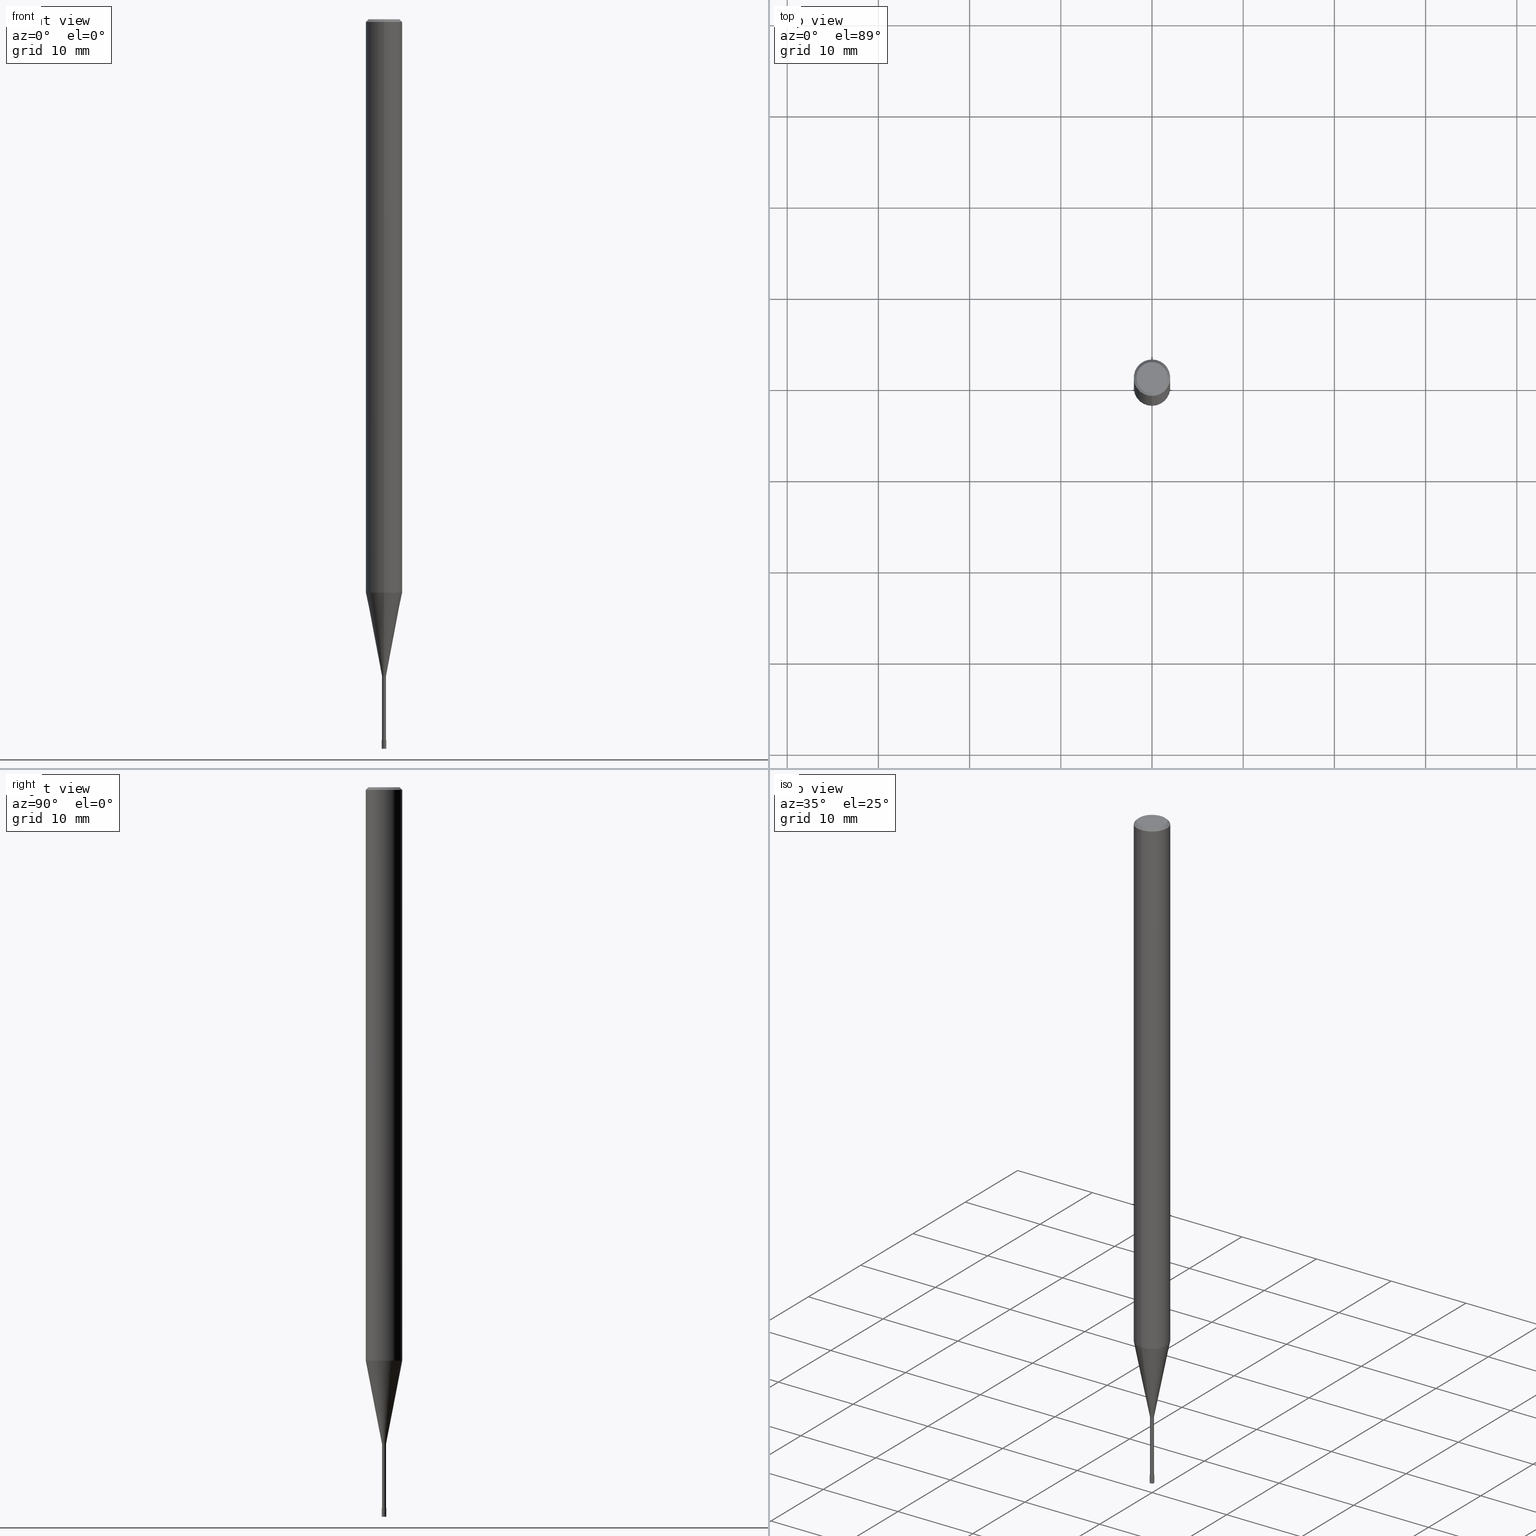
[diagram: canonical four-view strip — front | top / right | iso, engineering-drawing reading convention]
A machine part, canonical four-view strip (front | top / right | iso — engineering-drawing reading convention). The complete STEP part file that produces these views, byte-faithful:
ISO-10303-21;
HEADER;
FILE_DESCRIPTION(('no description'),'unknown implementation level');
FILE_NAME('CPRL2005-8-Huellk.stp','  ',('CIMSOURCE GmbH'),('CADClick - KiM GmbH - www.kimweb.de'),'unknown preprocess','ACIS','unknown authorization');
FILE_SCHEMA(('automotive_design'));
ENDSEC;
DATA;
#1=MECHANICAL_DESIGN_GEOMETRIC_PRESENTATION_REPRESENTATION(' ',(#14,#15,#16,#17,#18,#19,#20,#21,#22,#23,#24,#25,#26,#27,#28,#29,#30,#31,#32,#33,#34,#35,#36,#37,#38,#39,#40,#41,#42,#43,#44,#45,#46,#47,#48,#49,#50,#51,#52,#53,#54,#55,#56,#57,#58,#59,#60,#61,#62,#63,#64,#65,#66,#67,#68,#69,#70,#71,#72),#10);
#2=PRODUCT_DEFINITION_CONTEXT('',#73,'design');
#3=APPLICATION_PROTOCOL_DEFINITION('INTERNATIONAL STANDARD','automotive_design',1994,#73);
#4=PRODUCT_CATEGORY_RELATIONSHIP('NONE','NONE',#74,#75);
#5=SHAPE_DEFINITION_REPRESENTATION(#76,#77);
#6=PRODUCT_DEFINITION_CONTEXT('',#78,'design');
#7=APPLICATION_PROTOCOL_DEFINITION('INTERNATIONAL STANDARD','automotive_design',1994,#78);
#8=PRODUCT_CATEGORY_RELATIONSHIP('NONE','NONE',#79,#80);
#9=SHAPE_DEFINITION_REPRESENTATION(#81,#82);
#10= (GEOMETRIC_REPRESENTATION_CONTEXT(3)GLOBAL_UNCERTAINTY_ASSIGNED_CONTEXT((#85))GLOBAL_UNIT_ASSIGNED_CONTEXT((#87,#88,#89))REPRESENTATION_CONTEXT('NONE','WORKSPACE'));
#14=STYLED_ITEM('',(#91),#92);
#15=STYLED_ITEM('',(#93),#94);
#16=STYLED_ITEM('',(#95),#96);
#17=STYLED_ITEM('',(#97),#98);
#18=STYLED_ITEM('',(#99),#100);
#19=STYLED_ITEM('',(#101),#102);
#20=STYLED_ITEM('',(#103),#104);
#21=STYLED_ITEM('',(#105),#106);
#22=STYLED_ITEM('',(#107),#108);
#23=STYLED_ITEM('',(#109),#110);
#24=STYLED_ITEM('',(#111),#112);
#25=STYLED_ITEM('',(#113),#114);
#26=STYLED_ITEM('',(#115),#116);
#27=STYLED_ITEM('',(#117),#118);
#28=STYLED_ITEM('',(#119),#120);
#29=STYLED_ITEM('',(#121),#122);
#30=STYLED_ITEM('',(#123),#124);
#31=STYLED_ITEM('',(#125),#126);
#32=STYLED_ITEM('',(#127),#128);
#33=STYLED_ITEM('',(#129),#130);
#34=STYLED_ITEM('',(#131),#132);
#35=STYLED_ITEM('',(#133),#134);
#36=STYLED_ITEM('',(#135),#136);
#37=STYLED_ITEM('',(#137),#138);
#38=STYLED_ITEM('',(#139),#140);
#39=STYLED_ITEM('',(#141),#142);
#40=STYLED_ITEM('',(#143),#144);
#41=STYLED_ITEM('',(#145),#146);
#42=STYLED_ITEM('',(#147),#148);
#43=STYLED_ITEM('',(#149),#150);
#44=STYLED_ITEM('',(#151),#152);
#45=STYLED_ITEM('',(#153),#154);
#46=STYLED_ITEM('',(#155),#156);
#47=STYLED_ITEM('',(#157),#158);
#48=STYLED_ITEM('',(#159),#160);
#49=STYLED_ITEM('',(#161),#162);
#50=STYLED_ITEM('',(#163),#164);
#51=STYLED_ITEM('',(#165),#166);
#52=STYLED_ITEM('',(#167),#168);
#53=STYLED_ITEM('',(#169),#170);
#54=STYLED_ITEM('',(#171),#172);
#55=STYLED_ITEM('',(#173),#174);
#56=STYLED_ITEM('',(#175),#176);
#57=STYLED_ITEM('',(#177),#178);
#58=STYLED_ITEM('',(#179),#180);
#59=STYLED_ITEM('',(#181),#182);
#60=STYLED_ITEM('',(#183),#184);
#61=STYLED_ITEM('',(#185),#186);
#62=STYLED_ITEM('',(#187),#188);
#63=STYLED_ITEM('',(#189),#190);
#64=STYLED_ITEM('',(#191),#192);
#65=STYLED_ITEM('',(#193),#194);
#66=STYLED_ITEM('',(#195),#196);
#67=STYLED_ITEM('',(#197),#198);
#68=STYLED_ITEM('',(#199),#200);
#69=STYLED_ITEM('',(#201),#202);
#70=STYLED_ITEM('',(#203),#204);
#71=STYLED_ITEM('',(#205),#206);
#72=STYLED_ITEM('',(#207),#208);
#73=APPLICATION_CONTEXT(' ');
#74=PRODUCT_CATEGORY('part','NONE');
#75=PRODUCT_RELATED_PRODUCT_CATEGORY('detail',' ',(#209));
#76=PRODUCT_DEFINITION_SHAPE('NONE','NONE',#210);
#77=ADVANCED_BREP_SHAPE_REPRESENTATION('1',(#98,#211),#10);
#78=APPLICATION_CONTEXT(' ');
#79=PRODUCT_CATEGORY('part','NONE');
#80=PRODUCT_RELATED_PRODUCT_CATEGORY('detail',' ',(#212));
#81=PRODUCT_DEFINITION_SHAPE('NONE','NONE',#213);
#82=ADVANCED_BREP_SHAPE_REPRESENTATION('2',(#138,#214),#10);
#85=UNCERTAINTY_MEASURE_WITH_UNIT(LENGTH_MEASURE(1.0E-006),#87,'','');
#87= (CONVERSION_BASED_UNIT('MILLIMETRE',#217)LENGTH_UNIT()NAMED_UNIT(#220));
#88= (NAMED_UNIT(#222)PLANE_ANGLE_UNIT()SI_UNIT($,.RADIAN.));
#89= (NAMED_UNIT(#222)SOLID_ANGLE_UNIT()SI_UNIT($,.STERADIAN.));
#91=PRESENTATION_STYLE_ASSIGNMENT((#228));
#92=EDGE_CURVE('',#178,#116,#229,.T.);
#93=PRESENTATION_STYLE_ASSIGNMENT((#230));
#94=EDGE_CURVE('',#202,#194,#231,.T.);
#95=PRESENTATION_STYLE_ASSIGNMENT((#232));
#96=VERTEX_POINT('',#233);
#97=PRESENTATION_STYLE_ASSIGNMENT((#234));
#98=MANIFOLD_SOLID_BREP('1',#235);
#99=PRESENTATION_STYLE_ASSIGNMENT((#236));
#100=ADVANCED_FACE('',(#237),#238,.T.);
#101=PRESENTATION_STYLE_ASSIGNMENT((#239));
#102=ADVANCED_FACE('',(#240),#241,.T.);
#103=PRESENTATION_STYLE_ASSIGNMENT((#242));
#104=EDGE_CURVE('',#198,#142,#243,.T.);
#105=PRESENTATION_STYLE_ASSIGNMENT((#244));
#106=EDGE_CURVE('',#164,#96,#245,.T.);
#107=PRESENTATION_STYLE_ASSIGNMENT((#246));
#108=EDGE_CURVE('',#136,#176,#247,.T.);
#109=PRESENTATION_STYLE_ASSIGNMENT((#248));
#110=VERTEX_POINT('',#249);
#111=PRESENTATION_STYLE_ASSIGNMENT((#250));
#112=EDGE_CURVE('',#96,#164,#251,.T.);
#113=PRESENTATION_STYLE_ASSIGNMENT((#252));
#114=EDGE_CURVE('',#110,#136,#253,.T.);
#115=PRESENTATION_STYLE_ASSIGNMENT((#254));
#116=VERTEX_POINT('',#255);
#117=PRESENTATION_STYLE_ASSIGNMENT((#256));
#118=EDGE_CURVE('',#148,#202,#257,.T.);
#119=PRESENTATION_STYLE_ASSIGNMENT((#258));
#120=ADVANCED_FACE('',(#259),#260,.T.);
#121=PRESENTATION_STYLE_ASSIGNMENT((#261));
#122=EDGE_CURVE('',#172,#148,#262,.T.);
#123=PRESENTATION_STYLE_ASSIGNMENT((#263));
#124=EDGE_CURVE('',#186,#202,#264,.T.);
#125=PRESENTATION_STYLE_ASSIGNMENT((#265));
#126=EDGE_CURVE('',#96,#198,#266,.T.);
#127=PRESENTATION_STYLE_ASSIGNMENT((#267));
#128=EDGE_CURVE('',#186,#182,#268,.T.);
#129=PRESENTATION_STYLE_ASSIGNMENT((#269));
#130=EDGE_CURVE('',#142,#164,#270,.T.);
#131=PRESENTATION_STYLE_ASSIGNMENT((#271));
#132=ADVANCED_FACE('',(#272),#273,.T.);
#133=PRESENTATION_STYLE_ASSIGNMENT((#274));
#134=EDGE_CURVE('',#116,#176,#275,.T.);
#135=PRESENTATION_STYLE_ASSIGNMENT((#276));
#136=VERTEX_POINT('',#277);
#137=PRESENTATION_STYLE_ASSIGNMENT((#278));
#138=MANIFOLD_SOLID_BREP('2',#279);
#139=PRESENTATION_STYLE_ASSIGNMENT((#280));
#140=EDGE_CURVE('',#142,#198,#281,.T.);
#141=PRESENTATION_STYLE_ASSIGNMENT((#282));
#142=VERTEX_POINT('',#283);
#143=PRESENTATION_STYLE_ASSIGNMENT((#284));
#144=EDGE_CURVE('',#162,#110,#285,.T.);
#145=PRESENTATION_STYLE_ASSIGNMENT((#286));
#146=EDGE_CURVE('',#176,#136,#287,.T.);
#147=PRESENTATION_STYLE_ASSIGNMENT((#288));
#148=VERTEX_POINT('',#289);
#149=PRESENTATION_STYLE_ASSIGNMENT((#290));
#150=ADVANCED_FACE('',(#291),#292,.T.);
#151=PRESENTATION_STYLE_ASSIGNMENT((#293));
#152=ADVANCED_FACE('',(#294),#295,.T.);
#153=PRESENTATION_STYLE_ASSIGNMENT((#296));
#154=EDGE_CURVE('',#194,#172,#297,.T.);
#155=PRESENTATION_STYLE_ASSIGNMENT((#298));
#156=ADVANCED_FACE('',(#299),#300,.T.);
#157=PRESENTATION_STYLE_ASSIGNMENT((#301));
#158=EDGE_CURVE('',#176,#162,#302,.T.);
#159=PRESENTATION_STYLE_ASSIGNMENT((#303));
#160=EDGE_CURVE('',#136,#178,#304,.T.);
#161=PRESENTATION_STYLE_ASSIGNMENT((#305));
#162=VERTEX_POINT('',#306);
#163=PRESENTATION_STYLE_ASSIGNMENT((#307));
#164=VERTEX_POINT('',#308);
#165=PRESENTATION_STYLE_ASSIGNMENT((#309));
#166=ADVANCED_FACE('',(#310,#311),#312,.T.);
#167=PRESENTATION_STYLE_ASSIGNMENT((#313));
#168=EDGE_CURVE('',#110,#162,#314,.T.);
#169=PRESENTATION_STYLE_ASSIGNMENT((#315));
#170=EDGE_CURVE('',#148,#182,#316,.T.);
#171=PRESENTATION_STYLE_ASSIGNMENT((#317));
#172=VERTEX_POINT('',#318);
#173=PRESENTATION_STYLE_ASSIGNMENT((#319));
#174=ADVANCED_FACE('',(#320),#321,.T.);
#175=PRESENTATION_STYLE_ASSIGNMENT((#322));
#176=VERTEX_POINT('',#323);
#177=PRESENTATION_STYLE_ASSIGNMENT((#324));
#178=VERTEX_POINT('',#325);
#179=PRESENTATION_STYLE_ASSIGNMENT((#326));
#180=ADVANCED_FACE('',(#327),#328,.T.);
#181=PRESENTATION_STYLE_ASSIGNMENT((#329));
#182=VERTEX_POINT('',#330);
#183=PRESENTATION_STYLE_ASSIGNMENT((#331));
#184=ADVANCED_FACE('',(#332),#333,.T.);
#185=PRESENTATION_STYLE_ASSIGNMENT((#334));
#186=VERTEX_POINT('',#335);
#187=PRESENTATION_STYLE_ASSIGNMENT((#336));
#188=ADVANCED_FACE('',(#337),#338,.T.);
#189=PRESENTATION_STYLE_ASSIGNMENT((#339));
#190=ADVANCED_FACE('',(#340),#341,.T.);
#191=PRESENTATION_STYLE_ASSIGNMENT((#342));
#192=ADVANCED_FACE('',(#343),#344,.T.);
#193=PRESENTATION_STYLE_ASSIGNMENT((#345));
#194=VERTEX_POINT('',#346);
#195=PRESENTATION_STYLE_ASSIGNMENT((#347));
#196=EDGE_CURVE('',#116,#178,#348,.T.);
#197=PRESENTATION_STYLE_ASSIGNMENT((#349));
#198=VERTEX_POINT('',#350);
#199=PRESENTATION_STYLE_ASSIGNMENT((#351));
#200=ADVANCED_FACE('',(#352),#353,.T.);
#201=PRESENTATION_STYLE_ASSIGNMENT((#354));
#202=VERTEX_POINT('',#355);
#203=PRESENTATION_STYLE_ASSIGNMENT((#356));
#204=EDGE_CURVE('',#172,#194,#357,.T.);
#205=PRESENTATION_STYLE_ASSIGNMENT((#358));
#206=EDGE_CURVE('',#182,#186,#359,.T.);
#207=PRESENTATION_STYLE_ASSIGNMENT((#360));
#208=EDGE_CURVE('',#202,#148,#361,.T.);
#209=PRODUCT('1','1','PART-1-DESC',(#362));
#210=PRODUCT_DEFINITION('NONE','NONE',#363,#2);
#211=AXIS2_PLACEMENT_3D('',#364,#365,#366);
#212=PRODUCT('2','2','PART-2-DESC',(#367));
#213=PRODUCT_DEFINITION('NONE','NONE',#368,#6);
#214=AXIS2_PLACEMENT_3D('',#369,#370,#371);
#217=LENGTH_MEASURE_WITH_UNIT(LENGTH_MEASURE(1.0),#372);
#220=DIMENSIONAL_EXPONENTS(1.0,0.0,0.0,0.0,0.0,0.0,0.0);
#222=DIMENSIONAL_EXPONENTS(0.0,0.0,0.0,0.0,0.0,0.0,0.0);
#228=CURVE_STYLE('',#373,POSITIVE_LENGTH_MEASURE(1.0E-006),#374);
#229=CIRCLE('',#375,0.22495);
#230=CURVE_STYLE('',#376,POSITIVE_LENGTH_MEASURE(1.0E-006),#377);
#231=LINE('',#378,#379);
#232=POINT_STYLE(' ',#380,POSITIVE_LENGTH_MEASURE(1.0E-006),#381);
#233=CARTESIAN_POINT('',(3.06151588455594E-017,-0.25,-80.0));
#234=SURFACE_STYLE_USAGE(.BOTH.,#382);
#235=CLOSED_SHELL('',(#192,#100,#132,#184,#166,#120,#200,#150,#152,#102,#190));
#236=SURFACE_STYLE_USAGE(.BOTH.,#383);
#237=FACE_OUTER_BOUND('',#384,.T.);
#238=CONICAL_SURFACE('',#385,1.11245,0.191977672522415);
#239=SURFACE_STYLE_USAGE(.BOTH.,#386);
#240=FACE_OUTER_BOUND('',#387,.T.);
#241=CYLINDRICAL_SURFACE('',#388,0.22495);
#242=CURVE_STYLE('',#389,POSITIVE_LENGTH_MEASURE(1.0E-006),#390);
#243=CIRCLE('',#391,0.2499);
#244=CURVE_STYLE('',#392,POSITIVE_LENGTH_MEASURE(1.0E-006),#393);
#245=CIRCLE('',#394,0.25);
#246=CURVE_STYLE('',#395,POSITIVE_LENGTH_MEASURE(1.0E-006),#396);
#247=CIRCLE('',#397,0.22495);
#248=POINT_STYLE(' ',#398,POSITIVE_LENGTH_MEASURE(1.0E-006),#399);
#249=CARTESIAN_POINT('',(0.0,1.99995,-62.868));
#250=CURVE_STYLE('',#400,POSITIVE_LENGTH_MEASURE(1.0E-006),#401);
#251=CIRCLE('',#402,0.25);
#252=CURVE_STYLE('',#403,POSITIVE_LENGTH_MEASURE(1.0E-006),#404);
#253=LINE('',#405,#406);
#254=POINT_STYLE(' ',#407,POSITIVE_LENGTH_MEASURE(1.0E-006),#408);
#255=CARTESIAN_POINT('',(2.75475199292344E-017,-0.22495,-79.0));
#256=CURVE_STYLE('',#409,POSITIVE_LENGTH_MEASURE(1.0E-006),#410);
#257=CIRCLE('',#411,2.0);
#258=SURFACE_STYLE_USAGE(.BOTH.,#412);
#259=FACE_OUTER_BOUND('',#413,.T.);
#260=PLANE('',#414);
#261=CURVE_STYLE('',#415,POSITIVE_LENGTH_MEASURE(1.0E-006),#416);
#262=LINE('',#417,#418);
#263=CURVE_STYLE('',#419,POSITIVE_LENGTH_MEASURE(1.0E-006),#420);
#264=LINE('',#421,#422);
#265=CURVE_STYLE('',#423,POSITIVE_LENGTH_MEASURE(1.0E-006),#424);
#266=LINE('',#425,#426);
#267=CURVE_STYLE('',#427,POSITIVE_LENGTH_MEASURE(1.0E-006),#428);
#268=CIRCLE('',#429,2.0);
#269=CURVE_STYLE('',#430,POSITIVE_LENGTH_MEASURE(1.0E-006),#431);
#270=LINE('',#432,#433);
#271=SURFACE_STYLE_USAGE(.BOTH.,#434);
#272=FACE_OUTER_BOUND('',#435,.T.);
#273=CYLINDRICAL_SURFACE('',#436,2.0);
#274=CURVE_STYLE('',#437,POSITIVE_LENGTH_MEASURE(1.0E-006),#438);
#275=LINE('',#439,#440);
#276=POINT_STYLE(' ',#441,POSITIVE_LENGTH_MEASURE(1.0E-006),#442);
#277=CARTESIAN_POINT('',(0.0,0.22495,-72.0));
#278=SURFACE_STYLE_USAGE(.BOTH.,#443);
#279=CLOSED_SHELL('',(#174,#156,#180,#188));
#280=CURVE_STYLE('',#444,POSITIVE_LENGTH_MEASURE(1.0E-006),#445);
#281=CIRCLE('',#446,0.2499);
#282=POINT_STYLE(' ',#447,POSITIVE_LENGTH_MEASURE(1.0E-006),#448);
#283=CARTESIAN_POINT('',(0.0,0.2499,-79.0));
#284=CURVE_STYLE('',#449,POSITIVE_LENGTH_MEASURE(1.0E-006),#450);
#285=CIRCLE('',#451,1.99995);
#286=CURVE_STYLE('',#452,POSITIVE_LENGTH_MEASURE(1.0E-006),#453);
#287=CIRCLE('',#454,0.22495);
#288=POINT_STYLE(' ',#455,POSITIVE_LENGTH_MEASURE(1.0E-006),#456);
#289=CARTESIAN_POINT('',(0.0,2.0,-0.299999999999997));
#290=SURFACE_STYLE_USAGE(.BOTH.,#457);
#291=FACE_OUTER_BOUND('',#458,.T.);
#292=CYLINDRICAL_SURFACE('',#459,2.0);
#293=SURFACE_STYLE_USAGE(.BOTH.,#460);
#294=FACE_OUTER_BOUND('',#461,.T.);
#295=CONICAL_SURFACE('',#462,1.11245,0.191977672522415);
#296=CURVE_STYLE('',#463,POSITIVE_LENGTH_MEASURE(1.0E-006),#464);
#297=CIRCLE('',#465,1.7);
#298=SURFACE_STYLE_USAGE(.BOTH.,#466);
#299=FACE_OUTER_BOUND('',#467,.T.);
#300=PLANE('',#468);
#301=CURVE_STYLE('',#469,POSITIVE_LENGTH_MEASURE(1.0E-006),#470);
#302=LINE('',#471,#472);
#303=CURVE_STYLE('',#473,POSITIVE_LENGTH_MEASURE(1.0E-006),#474);
#304=LINE('',#475,#476);
#305=POINT_STYLE(' ',#477,POSITIVE_LENGTH_MEASURE(1.0E-006),#478);
#306=CARTESIAN_POINT('',(2.44915147732706E-016,-1.99995,-62.868));
#307=POINT_STYLE(' ',#479,POSITIVE_LENGTH_MEASURE(1.0E-006),#480);
#308=CARTESIAN_POINT('',(0.0,0.25,-80.0));
#309=SURFACE_STYLE_USAGE(.BOTH.,#481);
#310=FACE_OUTER_BOUND('',#482,.T.);
#311=FACE_BOUND('',#483,.T.);
#312=PLANE('',#484);
#313=CURVE_STYLE('',#485,POSITIVE_LENGTH_MEASURE(1.0E-006),#486);
#314=CIRCLE('',#487,1.99995);
#315=CURVE_STYLE('',#488,POSITIVE_LENGTH_MEASURE(1.0E-006),#489);
#316=LINE('',#490,#491);
#317=POINT_STYLE(' ',#492,POSITIVE_LENGTH_MEASURE(1.0E-006),#493);
#318=CARTESIAN_POINT('',(0.0,1.7,0.0));
#319=SURFACE_STYLE_USAGE(.BOTH.,#494);
#320=FACE_OUTER_BOUND('',#495,.T.);
#321=CONICAL_SURFACE('',#496,0.24995,9.99999996666557E-005);
#322=POINT_STYLE(' ',#497,POSITIVE_LENGTH_MEASURE(1.0E-006),#498);
#323=CARTESIAN_POINT('',(2.75475199292344E-017,-0.22495,-72.0));
#324=POINT_STYLE(' ',#499,POSITIVE_LENGTH_MEASURE(1.0E-006),#500);
#325=CARTESIAN_POINT('',(0.0,0.22495,-79.0));
#326=SURFACE_STYLE_USAGE(.BOTH.,#501);
#327=FACE_OUTER_BOUND('',#502,.T.);
#328=CONICAL_SURFACE('',#503,0.24995,9.99999996666557E-005);
#329=POINT_STYLE(' ',#504,POSITIVE_LENGTH_MEASURE(1.0E-006),#505);
#330=CARTESIAN_POINT('',(0.0,2.0,-62.868));
#331=SURFACE_STYLE_USAGE(.BOTH.,#506);
#332=FACE_OUTER_BOUND('',#507,.T.);
#333=CONICAL_SURFACE('',#508,1.85,0.785398163397453);
#334=POINT_STYLE(' ',#509,POSITIVE_LENGTH_MEASURE(1.0E-006),#510);
#335=CARTESIAN_POINT('',(2.44921270764475E-016,-2.0,-62.868));
#336=SURFACE_STYLE_USAGE(.BOTH.,#511);
#337=FACE_OUTER_BOUND('',#512,.T.);
#338=PLANE('',#513);
#339=SURFACE_STYLE_USAGE(.BOTH.,#514);
#340=FACE_OUTER_BOUND('',#515,.T.);
#341=PLANE('',#516);
#342=SURFACE_STYLE_USAGE(.BOTH.,#517);
#343=FACE_OUTER_BOUND('',#518,.T.);
#344=CYLINDRICAL_SURFACE('',#519,0.22495);
#345=POINT_STYLE(' ',#520,POSITIVE_LENGTH_MEASURE(1.0E-006),#521);
#346=CARTESIAN_POINT('',(2.08183080149804E-016,-1.7,0.0));
#347=CURVE_STYLE('',#522,POSITIVE_LENGTH_MEASURE(1.0E-006),#523);
#348=CIRCLE('',#524,0.22495);
#349=POINT_STYLE(' ',#525,POSITIVE_LENGTH_MEASURE(1.0E-006),#526);
#350=CARTESIAN_POINT('',(3.06029127820212E-017,-0.2499,-79.0));
#351=SURFACE_STYLE_USAGE(.BOTH.,#527);
#352=FACE_OUTER_BOUND('',#528,.T.);
#353=CONICAL_SURFACE('',#529,1.85,0.785398163397453);
#354=POINT_STYLE(' ',#530,POSITIVE_LENGTH_MEASURE(1.0E-006),#531);
#355=CARTESIAN_POINT('',(2.44921270764475E-016,-2.0,-0.299999999999997));
#356=CURVE_STYLE('',#532,POSITIVE_LENGTH_MEASURE(1.0E-006),#533);
#357=CIRCLE('',#534,1.7);
#358=CURVE_STYLE('',#535,POSITIVE_LENGTH_MEASURE(1.0E-006),#536);
#359=CIRCLE('',#537,2.0);
#360=CURVE_STYLE('',#538,POSITIVE_LENGTH_MEASURE(1.0E-006),#539);
#361=CIRCLE('',#540,2.0);
#362=PRODUCT_CONTEXT('',#73,'mechanical');
#363=PRODUCT_DEFINITION_FORMATION_WITH_SPECIFIED_SOURCE(' ','NONE',#209,.NOT_KNOWN.);
#364=CARTESIAN_POINT('',(0.0,0.0,0.0));
#365=DIRECTION('',(0.0,0.0,1.0));
#366=DIRECTION('',(1.0,0.0,0.0));
#367=PRODUCT_CONTEXT('',#78,'mechanical');
#368=PRODUCT_DEFINITION_FORMATION_WITH_SPECIFIED_SOURCE(' ','NONE',#212,.NOT_KNOWN.);
#369=CARTESIAN_POINT('',(0.0,0.0,0.0));
#370=DIRECTION('',(0.0,0.0,1.0));
#371=DIRECTION('',(1.0,0.0,0.0));
#372= (NAMED_UNIT(#220)LENGTH_UNIT()SI_UNIT(.MILLI.,.METRE.));
#373=DRAUGHTING_PRE_DEFINED_CURVE_FONT('continuous');
#374=COLOUR_RGB('',0.498039215803146,0.498039215803146,0.498039215803146);
#375=AXIS2_PLACEMENT_3D('',#542,#543,#544);
#376=DRAUGHTING_PRE_DEFINED_CURVE_FONT('continuous');
#377=COLOUR_RGB('',0.498039215803146,0.498039215803146,0.498039215803146);
#378=CARTESIAN_POINT('',(2.2655217545714E-016,-1.85,-0.149999999999999));
#379=VECTOR('',#545,1.0);
#380=PRE_DEFINED_MARKER('');
#381=COLOUR_RGB('',0.800000011920929,0.800000011920929,0.800000011920929);
#382=SURFACE_SIDE_STYLE('',(#546));
#383=SURFACE_SIDE_STYLE('',(#547));
#384=EDGE_LOOP('',(#548,#549,#550,#551));
#385=AXIS2_PLACEMENT_3D('',#552,#553,#554);
#386=SURFACE_SIDE_STYLE('',(#555));
#387=EDGE_LOOP('',(#556,#557,#558,#559));
#388=AXIS2_PLACEMENT_3D('',#560,#561,#562);
#389=DRAUGHTING_PRE_DEFINED_CURVE_FONT('continuous');
#390=COLOUR_RGB('',0.800000011920929,0.800000011920929,0.800000011920929);
#391=AXIS2_PLACEMENT_3D('',#563,#564,#565);
#392=DRAUGHTING_PRE_DEFINED_CURVE_FONT('continuous');
#393=COLOUR_RGB('',0.800000011920929,0.800000011920929,0.800000011920929);
#394=AXIS2_PLACEMENT_3D('',#566,#567,#568);
#395=DRAUGHTING_PRE_DEFINED_CURVE_FONT('continuous');
#396=COLOUR_RGB('',0.498039215803146,0.498039215803146,0.498039215803146);
#397=AXIS2_PLACEMENT_3D('',#569,#570,#571);
#398=PRE_DEFINED_MARKER('');
#399=COLOUR_RGB('',0.498039215803146,0.498039215803146,0.498039215803146);
#400=DRAUGHTING_PRE_DEFINED_CURVE_FONT('continuous');
#401=COLOUR_RGB('',0.800000011920929,0.800000011920929,0.800000011920929);
#402=AXIS2_PLACEMENT_3D('',#572,#573,#574);
#403=DRAUGHTING_PRE_DEFINED_CURVE_FONT('continuous');
#404=COLOUR_RGB('',0.498039215803146,0.498039215803146,0.498039215803146);
#405=CARTESIAN_POINT('',(-1.3623133383097E-016,1.11245,-67.434));
#406=VECTOR('',#575,1.0);
#407=PRE_DEFINED_MARKER('');
#408=COLOUR_RGB('',0.498039215803146,0.498039215803146,0.498039215803146);
#409=DRAUGHTING_PRE_DEFINED_CURVE_FONT('continuous');
#410=COLOUR_RGB('',0.498039215803146,0.498039215803146,0.498039215803146);
#411=AXIS2_PLACEMENT_3D('',#576,#577,#578);
#412=SURFACE_SIDE_STYLE('',(#579));
#413=EDGE_LOOP('',(#580,#581));
#414=AXIS2_PLACEMENT_3D('',#582,#583,#584);
#415=DRAUGHTING_PRE_DEFINED_CURVE_FONT('continuous');
#416=COLOUR_RGB('',0.498039215803146,0.498039215803146,0.498039215803146);
#417=CARTESIAN_POINT('',(-2.2655217545714E-016,1.85,-0.149999999999999));
#418=VECTOR('',#585,1.0);
#419=DRAUGHTING_PRE_DEFINED_CURVE_FONT('continuous');
#420=COLOUR_RGB('',0.498039215803146,0.498039215803146,0.498039215803146);
#421=CARTESIAN_POINT('',(2.44921270764475E-016,-2.0,-31.584));
#422=VECTOR('',#586,1.0);
#423=DRAUGHTING_PRE_DEFINED_CURVE_FONT('continuous');
#424=COLOUR_RGB('',0.800000011920929,0.800000011920929,0.800000011920929);
#425=CARTESIAN_POINT('',(3.06090358137903E-017,-0.24995,-79.5));
#426=VECTOR('',#587,1.0);
#427=DRAUGHTING_PRE_DEFINED_CURVE_FONT('continuous');
#428=COLOUR_RGB('',0.498039215803146,0.498039215803146,0.498039215803146);
#429=AXIS2_PLACEMENT_3D('',#588,#589,#590);
#430=DRAUGHTING_PRE_DEFINED_CURVE_FONT('continuous');
#431=COLOUR_RGB('',0.800000011920929,0.800000011920929,0.800000011920929);
#432=CARTESIAN_POINT('',(-3.06090358137903E-017,0.24995,-79.5));
#433=VECTOR('',#591,1.0);
#434=SURFACE_SIDE_STYLE('',(#592));
#435=EDGE_LOOP('',(#593,#594,#595,#596));
#436=AXIS2_PLACEMENT_3D('',#597,#598,#599);
#437=DRAUGHTING_PRE_DEFINED_CURVE_FONT('continuous');
#438=COLOUR_RGB('',0.498039215803146,0.498039215803146,0.498039215803146);
#439=CARTESIAN_POINT('',(2.75475199292344E-017,-0.22495,-75.5));
#440=VECTOR('',#600,1.0);
#441=PRE_DEFINED_MARKER('');
#442=COLOUR_RGB('',0.498039215803146,0.498039215803146,0.498039215803146);
#443=SURFACE_SIDE_STYLE('',(#601));
#444=DRAUGHTING_PRE_DEFINED_CURVE_FONT('continuous');
#445=COLOUR_RGB('',0.800000011920929,0.800000011920929,0.800000011920929);
#446=AXIS2_PLACEMENT_3D('',#602,#603,#604);
#447=PRE_DEFINED_MARKER('');
#448=COLOUR_RGB('',0.800000011920929,0.800000011920929,0.800000011920929);
#449=DRAUGHTING_PRE_DEFINED_CURVE_FONT('continuous');
#450=COLOUR_RGB('',0.498039215803146,0.498039215803146,0.498039215803146);
#451=AXIS2_PLACEMENT_3D('',#605,#606,#607);
#452=DRAUGHTING_PRE_DEFINED_CURVE_FONT('continuous');
#453=COLOUR_RGB('',0.498039215803146,0.498039215803146,0.498039215803146);
#454=AXIS2_PLACEMENT_3D('',#608,#609,#610);
#455=PRE_DEFINED_MARKER('');
#456=COLOUR_RGB('',0.498039215803146,0.498039215803146,0.498039215803146);
#457=SURFACE_SIDE_STYLE('',(#611));
#458=EDGE_LOOP('',(#612,#613,#614,#615));
#459=AXIS2_PLACEMENT_3D('',#616,#617,#618);
#460=SURFACE_SIDE_STYLE('',(#619));
#461=EDGE_LOOP('',(#620,#621,#622,#623));
#462=AXIS2_PLACEMENT_3D('',#624,#625,#626);
#463=DRAUGHTING_PRE_DEFINED_CURVE_FONT('continuous');
#464=COLOUR_RGB('',0.498039215803146,0.498039215803146,0.498039215803146);
#465=AXIS2_PLACEMENT_3D('',#627,#628,#629);
#466=SURFACE_SIDE_STYLE('',(#630));
#467=EDGE_LOOP('',(#631,#632));
#468=AXIS2_PLACEMENT_3D('',#633,#634,#635);
#469=DRAUGHTING_PRE_DEFINED_CURVE_FONT('continuous');
#470=COLOUR_RGB('',0.498039215803146,0.498039215803146,0.498039215803146);
#471=CARTESIAN_POINT('',(1.3623133383097E-016,-1.11245,-67.434));
#472=VECTOR('',#636,1.0);
#473=DRAUGHTING_PRE_DEFINED_CURVE_FONT('continuous');
#474=COLOUR_RGB('',0.498039215803146,0.498039215803146,0.498039215803146);
#475=CARTESIAN_POINT('',(-2.75475199292344E-017,0.22495,-75.5));
#476=VECTOR('',#637,1.0);
#477=PRE_DEFINED_MARKER('');
#478=COLOUR_RGB('',0.498039215803146,0.498039215803146,0.498039215803146);
#479=PRE_DEFINED_MARKER('');
#480=COLOUR_RGB('',0.800000011920929,0.800000011920929,0.800000011920929);
#481=SURFACE_SIDE_STYLE('',(#638));
#482=EDGE_LOOP('',(#639,#640));
#483=EDGE_LOOP('',(#641,#642));
#484=AXIS2_PLACEMENT_3D('',#643,#644,#645);
#485=DRAUGHTING_PRE_DEFINED_CURVE_FONT('continuous');
#486=COLOUR_RGB('',0.498039215803146,0.498039215803146,0.498039215803146);
#487=AXIS2_PLACEMENT_3D('',#646,#647,#648);
#488=DRAUGHTING_PRE_DEFINED_CURVE_FONT('continuous');
#489=COLOUR_RGB('',0.498039215803146,0.498039215803146,0.498039215803146);
#490=CARTESIAN_POINT('',(-2.44921270764475E-016,2.0,-31.584));
#491=VECTOR('',#649,1.0);
#492=PRE_DEFINED_MARKER('');
#493=COLOUR_RGB('',0.498039215803146,0.498039215803146,0.498039215803146);
#494=SURFACE_SIDE_STYLE('',(#650));
#495=EDGE_LOOP('',(#651,#652,#653,#654));
#496=AXIS2_PLACEMENT_3D('',#655,#656,#657);
#497=PRE_DEFINED_MARKER('');
#498=COLOUR_RGB('',0.498039215803146,0.498039215803146,0.498039215803146);
#499=PRE_DEFINED_MARKER('');
#500=COLOUR_RGB('',0.498039215803146,0.498039215803146,0.498039215803146);
#501=SURFACE_SIDE_STYLE('',(#658));
#502=EDGE_LOOP('',(#659,#660,#661,#662));
#503=AXIS2_PLACEMENT_3D('',#663,#664,#665);
#504=PRE_DEFINED_MARKER('');
#505=COLOUR_RGB('',0.498039215803146,0.498039215803146,0.498039215803146);
#506=SURFACE_SIDE_STYLE('',(#666));
#507=EDGE_LOOP('',(#667,#668,#669,#670));
#508=AXIS2_PLACEMENT_3D('',#671,#672,#673);
#509=PRE_DEFINED_MARKER('');
#510=COLOUR_RGB('',0.498039215803146,0.498039215803146,0.498039215803146);
#511=SURFACE_SIDE_STYLE('',(#674));
#512=EDGE_LOOP('',(#675,#676));
#513=AXIS2_PLACEMENT_3D('',#677,#678,#679);
#514=SURFACE_SIDE_STYLE('',(#680));
#515=EDGE_LOOP('',(#681,#682));
#516=AXIS2_PLACEMENT_3D('',#683,#684,#685);
#517=SURFACE_SIDE_STYLE('',(#686));
#518=EDGE_LOOP('',(#687,#688,#689,#690));
#519=AXIS2_PLACEMENT_3D('',#691,#692,#693);
#520=PRE_DEFINED_MARKER('');
#521=COLOUR_RGB('',0.498039215803146,0.498039215803146,0.498039215803146);
#522=DRAUGHTING_PRE_DEFINED_CURVE_FONT('continuous');
#523=COLOUR_RGB('',0.498039215803146,0.498039215803146,0.498039215803146);
#524=AXIS2_PLACEMENT_3D('',#694,#695,#696);
#525=PRE_DEFINED_MARKER('');
#526=COLOUR_RGB('',0.800000011920929,0.800000011920929,0.800000011920929);
#527=SURFACE_SIDE_STYLE('',(#697));
#528=EDGE_LOOP('',(#698,#699,#700,#701));
#529=AXIS2_PLACEMENT_3D('',#702,#703,#704);
#530=PRE_DEFINED_MARKER('');
#531=COLOUR_RGB('',0.498039215803146,0.498039215803146,0.498039215803146);
#532=DRAUGHTING_PRE_DEFINED_CURVE_FONT('continuous');
#533=COLOUR_RGB('',0.498039215803146,0.498039215803146,0.498039215803146);
#534=AXIS2_PLACEMENT_3D('',#705,#706,#707);
#535=DRAUGHTING_PRE_DEFINED_CURVE_FONT('continuous');
#536=COLOUR_RGB('',0.498039215803146,0.498039215803146,0.498039215803146);
#537=AXIS2_PLACEMENT_3D('',#708,#709,#710);
#538=DRAUGHTING_PRE_DEFINED_CURVE_FONT('continuous');
#539=COLOUR_RGB('',0.498039215803146,0.498039215803146,0.498039215803146);
#540=AXIS2_PLACEMENT_3D('',#711,#712,#713);
#542=CARTESIAN_POINT('',(0.0,0.0,-79.0));
#543=DIRECTION('',(0.0,0.0,-1.0));
#544=DIRECTION('',(0.0,1.0,0.0));
#545=DIRECTION('',(-8.6592745707194E-017,0.707106781186551,0.707106781186544));
#546=SURFACE_STYLE_FILL_AREA(#714);
#547=SURFACE_STYLE_FILL_AREA(#715);
#548=ORIENTED_EDGE('',*,*,#114,.F.);
#549=ORIENTED_EDGE('',*,*,#168,.T.);
#550=ORIENTED_EDGE('',*,*,#158,.F.);
#551=ORIENTED_EDGE('',*,*,#108,.F.);
#552=CARTESIAN_POINT('',(0.0,0.0,-67.434));
#553=DIRECTION('',(-0.0,-0.0,1.0));
#554=DIRECTION('',(0.0,1.0,0.0));
#555=SURFACE_STYLE_FILL_AREA(#716);
#556=ORIENTED_EDGE('',*,*,#160,.T.);
#557=ORIENTED_EDGE('',*,*,#196,.F.);
#558=ORIENTED_EDGE('',*,*,#134,.T.);
#559=ORIENTED_EDGE('',*,*,#146,.T.);
#560=CARTESIAN_POINT('',(0.0,0.0,-75.5));
#561=DIRECTION('',(-0.0,-0.0,1.0));
#562=DIRECTION('',(0.0,1.0,0.0));
#563=CARTESIAN_POINT('',(0.0,0.0,-79.0));
#564=DIRECTION('',(0.0,0.0,-1.0));
#565=DIRECTION('',(0.0,1.0,0.0));
#566=CARTESIAN_POINT('',(0.0,0.0,-80.0));
#567=DIRECTION('',(0.0,0.0,-1.0));
#568=DIRECTION('',(0.0,1.0,0.0));
#569=CARTESIAN_POINT('',(0.0,0.0,-72.0));
#570=DIRECTION('',(0.0,0.0,-1.0));
#571=DIRECTION('',(0.0,1.0,0.0));
#572=CARTESIAN_POINT('',(0.0,0.0,-80.0));
#573=DIRECTION('',(0.0,0.0,-1.0));
#574=DIRECTION('',(0.0,1.0,0.0));
#575=DIRECTION('',(2.33655635855942E-017,-0.190800607171954,-0.981628813912272));
#576=CARTESIAN_POINT('',(0.0,0.0,-0.299999999999997));
#577=DIRECTION('',(0.0,0.0,-1.0));
#578=DIRECTION('',(0.0,1.0,0.0));
#579=SURFACE_STYLE_FILL_AREA(#717);
#580=ORIENTED_EDGE('',*,*,#204,.F.);
#581=ORIENTED_EDGE('',*,*,#154,.F.);
#582=CARTESIAN_POINT('',(0.0,0.85,0.0));
#583=DIRECTION('',(-0.0,0.0,1.0));
#584=DIRECTION('',(0.0,-1.0,0.0));
#585=DIRECTION('',(-8.6592745707194E-017,0.707106781186551,-0.707106781186544));
#586=DIRECTION('',(-0.0,-0.0,1.0));
#587=DIRECTION('',(-1.22460634769921E-020,9.9999999499989E-005,0.999999995));
#588=CARTESIAN_POINT('',(0.0,0.0,-62.868));
#589=DIRECTION('',(0.0,0.0,-1.0));
#590=DIRECTION('',(0.0,1.0,0.0));
#591=DIRECTION('',(-1.22460634769921E-020,9.9999999499989E-005,-0.999999995));
#592=SURFACE_STYLE_FILL_AREA(#718);
#593=ORIENTED_EDGE('',*,*,#170,.F.);
#594=ORIENTED_EDGE('',*,*,#118,.T.);
#595=ORIENTED_EDGE('',*,*,#124,.F.);
#596=ORIENTED_EDGE('',*,*,#206,.F.);
#597=CARTESIAN_POINT('',(0.0,0.0,-31.584));
#598=DIRECTION('',(-0.0,-0.0,1.0));
#599=DIRECTION('',(0.0,1.0,0.0));
#600=DIRECTION('',(-0.0,-0.0,1.0));
#601=SURFACE_STYLE_FILL_AREA(#719);
#602=CARTESIAN_POINT('',(0.0,0.0,-79.0));
#603=DIRECTION('',(0.0,0.0,-1.0));
#604=DIRECTION('',(0.0,1.0,0.0));
#605=CARTESIAN_POINT('',(0.0,0.0,-62.868));
#606=DIRECTION('',(0.0,0.0,-1.0));
#607=DIRECTION('',(0.0,1.0,0.0));
#608=CARTESIAN_POINT('',(0.0,0.0,-72.0));
#609=DIRECTION('',(0.0,0.0,-1.0));
#610=DIRECTION('',(0.0,1.0,0.0));
#611=SURFACE_STYLE_FILL_AREA(#720);
#612=ORIENTED_EDGE('',*,*,#170,.T.);
#613=ORIENTED_EDGE('',*,*,#128,.F.);
#614=ORIENTED_EDGE('',*,*,#124,.T.);
#615=ORIENTED_EDGE('',*,*,#208,.T.);
#616=CARTESIAN_POINT('',(0.0,0.0,-31.584));
#617=DIRECTION('',(-0.0,-0.0,1.0));
#618=DIRECTION('',(0.0,1.0,0.0));
#619=SURFACE_STYLE_FILL_AREA(#721);
#620=ORIENTED_EDGE('',*,*,#114,.T.);
#621=ORIENTED_EDGE('',*,*,#146,.F.);
#622=ORIENTED_EDGE('',*,*,#158,.T.);
#623=ORIENTED_EDGE('',*,*,#144,.T.);
#624=CARTESIAN_POINT('',(0.0,0.0,-67.434));
#625=DIRECTION('',(-0.0,-0.0,1.0));
#626=DIRECTION('',(0.0,1.0,0.0));
#627=CARTESIAN_POINT('',(0.0,0.0,0.0));
#628=DIRECTION('',(0.0,0.0,-1.0));
#629=DIRECTION('',(0.0,1.0,0.0));
#630=SURFACE_STYLE_FILL_AREA(#722);
#631=ORIENTED_EDGE('',*,*,#140,.F.);
#632=ORIENTED_EDGE('',*,*,#104,.F.);
#633=CARTESIAN_POINT('',(0.0,0.12495,-79.0));
#634=DIRECTION('',(-0.0,0.0,1.0));
#635=DIRECTION('',(0.0,-1.0,0.0));
#636=DIRECTION('',(2.33655635855942E-017,-0.190800607171954,0.981628813912272));
#637=DIRECTION('',(0.0,0.0,-1.0));
#638=SURFACE_STYLE_FILL_AREA(#723);
#639=ORIENTED_EDGE('',*,*,#206,.T.);
#640=ORIENTED_EDGE('',*,*,#128,.T.);
#641=ORIENTED_EDGE('',*,*,#168,.F.);
#642=ORIENTED_EDGE('',*,*,#144,.F.);
#643=CARTESIAN_POINT('',(0.0,1.0,-62.868));
#644=DIRECTION('',(0.0,0.0,-1.0));
#645=DIRECTION('',(0.0,1.0,0.0));
#646=CARTESIAN_POINT('',(0.0,0.0,-62.868));
#647=DIRECTION('',(0.0,0.0,-1.0));
#648=DIRECTION('',(0.0,1.0,0.0));
#649=DIRECTION('',(0.0,0.0,-1.0));
#650=SURFACE_STYLE_FILL_AREA(#724);
#651=ORIENTED_EDGE('',*,*,#130,.F.);
#652=ORIENTED_EDGE('',*,*,#140,.T.);
#653=ORIENTED_EDGE('',*,*,#126,.F.);
#654=ORIENTED_EDGE('',*,*,#106,.F.);
#655=CARTESIAN_POINT('',(0.0,0.0,-79.5));
#656=DIRECTION('',(0.0,-0.0,-1.0));
#657=DIRECTION('',(0.0,1.0,0.0));
#658=SURFACE_STYLE_FILL_AREA(#725);
#659=ORIENTED_EDGE('',*,*,#130,.T.);
#660=ORIENTED_EDGE('',*,*,#112,.F.);
#661=ORIENTED_EDGE('',*,*,#126,.T.);
#662=ORIENTED_EDGE('',*,*,#104,.T.);
#663=CARTESIAN_POINT('',(0.0,0.0,-79.5));
#664=DIRECTION('',(0.0,-0.0,-1.0));
#665=DIRECTION('',(0.0,1.0,0.0));
#666=SURFACE_STYLE_FILL_AREA(#726);
#667=ORIENTED_EDGE('',*,*,#122,.F.);
#668=ORIENTED_EDGE('',*,*,#204,.T.);
#669=ORIENTED_EDGE('',*,*,#94,.F.);
#670=ORIENTED_EDGE('',*,*,#118,.F.);
#671=CARTESIAN_POINT('',(0.0,0.0,-0.149999999999999));
#672=DIRECTION('',(0.0,-0.0,-1.0));
#673=DIRECTION('',(0.0,1.0,0.0));
#674=SURFACE_STYLE_FILL_AREA(#727);
#675=ORIENTED_EDGE('',*,*,#106,.T.);
#676=ORIENTED_EDGE('',*,*,#112,.T.);
#677=CARTESIAN_POINT('',(0.0,0.1225,-80.0));
#678=DIRECTION('',(0.0,0.0,-1.0));
#679=DIRECTION('',(0.0,1.0,0.0));
#680=SURFACE_STYLE_FILL_AREA(#728);
#681=ORIENTED_EDGE('',*,*,#92,.T.);
#682=ORIENTED_EDGE('',*,*,#196,.T.);
#683=CARTESIAN_POINT('',(0.0,0.112475,-79.0));
#684=DIRECTION('',(0.0,0.0,-1.0));
#685=DIRECTION('',(0.0,1.0,0.0));
#686=SURFACE_STYLE_FILL_AREA(#729);
#687=ORIENTED_EDGE('',*,*,#160,.F.);
#688=ORIENTED_EDGE('',*,*,#108,.T.);
#689=ORIENTED_EDGE('',*,*,#134,.F.);
#690=ORIENTED_EDGE('',*,*,#92,.F.);
#691=CARTESIAN_POINT('',(0.0,0.0,-75.5));
#692=DIRECTION('',(-0.0,-0.0,1.0));
#693=DIRECTION('',(0.0,1.0,0.0));
#694=CARTESIAN_POINT('',(0.0,0.0,-79.0));
#695=DIRECTION('',(0.0,0.0,-1.0));
#696=DIRECTION('',(0.0,1.0,0.0));
#697=SURFACE_STYLE_FILL_AREA(#730);
#698=ORIENTED_EDGE('',*,*,#122,.T.);
#699=ORIENTED_EDGE('',*,*,#208,.F.);
#700=ORIENTED_EDGE('',*,*,#94,.T.);
#701=ORIENTED_EDGE('',*,*,#154,.T.);
#702=CARTESIAN_POINT('',(0.0,0.0,-0.149999999999999));
#703=DIRECTION('',(0.0,-0.0,-1.0));
#704=DIRECTION('',(0.0,1.0,0.0));
#705=CARTESIAN_POINT('',(0.0,0.0,0.0));
#706=DIRECTION('',(0.0,0.0,-1.0));
#707=DIRECTION('',(0.0,1.0,0.0));
#708=CARTESIAN_POINT('',(0.0,0.0,-62.868));
#709=DIRECTION('',(0.0,0.0,-1.0));
#710=DIRECTION('',(0.0,1.0,0.0));
#711=CARTESIAN_POINT('',(0.0,0.0,-0.299999999999997));
#712=DIRECTION('',(0.0,0.0,-1.0));
#713=DIRECTION('',(0.0,1.0,0.0));
#714=FILL_AREA_STYLE('',(#731));
#715=FILL_AREA_STYLE('',(#732));
#716=FILL_AREA_STYLE('',(#733));
#717=FILL_AREA_STYLE('',(#734));
#718=FILL_AREA_STYLE('',(#735));
#719=FILL_AREA_STYLE('',(#736));
#720=FILL_AREA_STYLE('',(#737));
#721=FILL_AREA_STYLE('',(#738));
#722=FILL_AREA_STYLE('',(#739));
#723=FILL_AREA_STYLE('',(#740));
#724=FILL_AREA_STYLE('',(#741));
#725=FILL_AREA_STYLE('',(#742));
#726=FILL_AREA_STYLE('',(#743));
#727=FILL_AREA_STYLE('',(#744));
#728=FILL_AREA_STYLE('',(#745));
#729=FILL_AREA_STYLE('',(#746));
#730=FILL_AREA_STYLE('',(#747));
#731=FILL_AREA_STYLE_COLOUR('',#748);
#732=FILL_AREA_STYLE_COLOUR('',#749);
#733=FILL_AREA_STYLE_COLOUR('',#750);
#734=FILL_AREA_STYLE_COLOUR('',#751);
#735=FILL_AREA_STYLE_COLOUR('',#752);
#736=FILL_AREA_STYLE_COLOUR('',#753);
#737=FILL_AREA_STYLE_COLOUR('',#754);
#738=FILL_AREA_STYLE_COLOUR('',#755);
#739=FILL_AREA_STYLE_COLOUR('',#756);
#740=FILL_AREA_STYLE_COLOUR('',#757);
#741=FILL_AREA_STYLE_COLOUR('',#758);
#742=FILL_AREA_STYLE_COLOUR('',#759);
#743=FILL_AREA_STYLE_COLOUR('',#760);
#744=FILL_AREA_STYLE_COLOUR('',#761);
#745=FILL_AREA_STYLE_COLOUR('',#762);
#746=FILL_AREA_STYLE_COLOUR('',#763);
#747=FILL_AREA_STYLE_COLOUR('',#764);
#748=COLOUR_RGB('',0.498039215803146,0.498039215803146,0.498039215803146);
#749=COLOUR_RGB('',0.498039215803146,0.498039215803146,0.498039215803146);
#750=COLOUR_RGB('',0.498039215803146,0.498039215803146,0.498039215803146);
#751=COLOUR_RGB('',0.498039215803146,0.498039215803146,0.498039215803146);
#752=COLOUR_RGB('',0.498039215803146,0.498039215803146,0.498039215803146);
#753=COLOUR_RGB('',0.800000011920929,0.800000011920929,0.800000011920929);
#754=COLOUR_RGB('',0.498039215803146,0.498039215803146,0.498039215803146);
#755=COLOUR_RGB('',0.498039215803146,0.498039215803146,0.498039215803146);
#756=COLOUR_RGB('',0.800000011920929,0.800000011920929,0.800000011920929);
#757=COLOUR_RGB('',0.498039215803146,0.498039215803146,0.498039215803146);
#758=COLOUR_RGB('',0.800000011920929,0.800000011920929,0.800000011920929);
#759=COLOUR_RGB('',0.800000011920929,0.800000011920929,0.800000011920929);
#760=COLOUR_RGB('',0.498039215803146,0.498039215803146,0.498039215803146);
#761=COLOUR_RGB('',0.800000011920929,0.800000011920929,0.800000011920929);
#762=COLOUR_RGB('',0.498039215803146,0.498039215803146,0.498039215803146);
#763=COLOUR_RGB('',0.498039215803146,0.498039215803146,0.498039215803146);
#764=COLOUR_RGB('',0.498039215803146,0.498039215803146,0.498039215803146);
#765=AXIS2_PLACEMENT_3D('PCS',#766,#767,#768);
#766=CARTESIAN_POINT('',(0.0,0.0,0.0));
#767=DIRECTION('',(0.0,0.0,1.0));
#768=DIRECTION('',(1.0,0.0,0.0));
#769=AXIS2_PLACEMENT_3D('CIP',#770,#771,#772);
#770=CARTESIAN_POINT('',(0.0,0.0,-80.0));
#771=DIRECTION('',(0.0,0.0,1.0));
#772=DIRECTION('',(1.0,0.0,0.0));
#773=AXIS2_PLACEMENT_3D('CRP',#774,#775,#776);
#774=CARTESIAN_POINT('',(-0.25,0.0,-80.0));
#775=DIRECTION('',(0.0,0.0,1.0));
#776=DIRECTION('',(1.0,0.0,0.0));
#777=AXIS2_PLACEMENT_3D('MCS',#778,#779,#780);
#778=CARTESIAN_POINT('',(0.0,0.0,-62.868));
#779=DIRECTION('',(0.0,0.0,1.0));
#780=DIRECTION('',(1.0,0.0,0.0));
#781=CONSTRUCTIVE_GEOMETRY_REPRESENTATION_RELATIONSHIP('coordinate systems',$,#77,#782);
#782=CONSTRUCTIVE_GEOMETRY_REPRESENTATION('coordinate systems',(#765,#769,#773,#777),#10);
ENDSEC;
END-ISO-10303-21;
